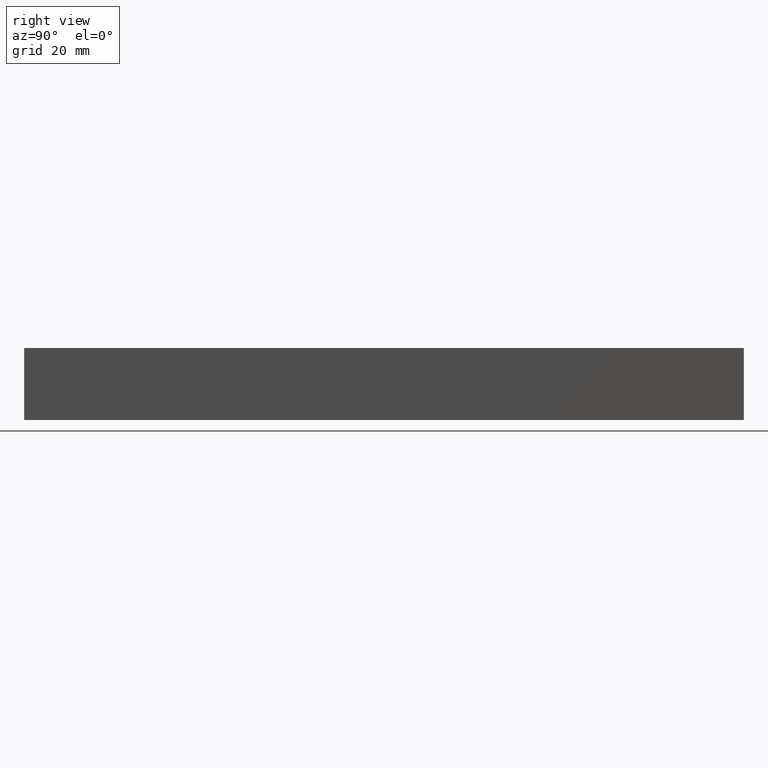
[diagram: clean part render]
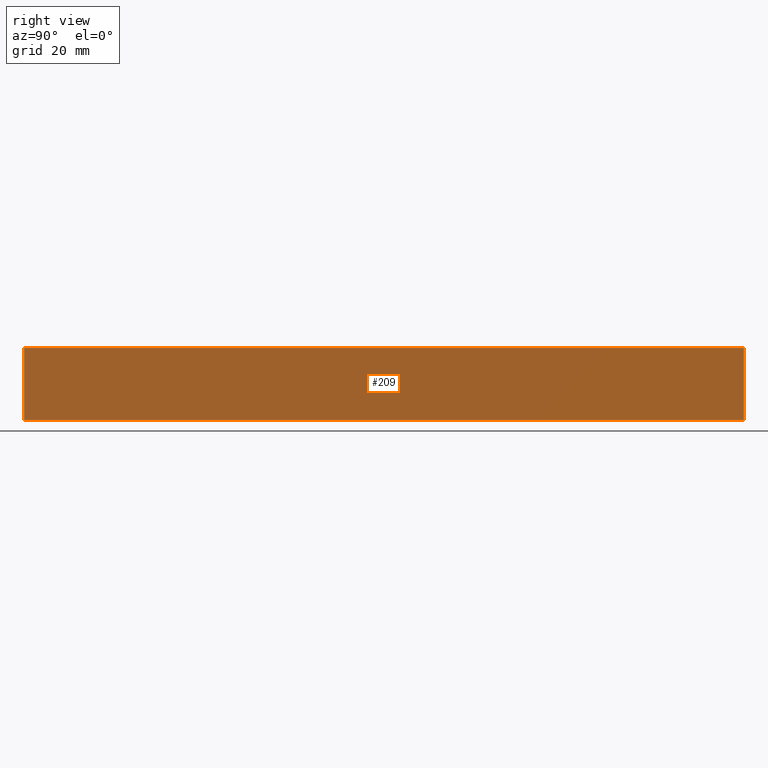
[diagram: same view with one face highlighted and labeled with its STEP entity id]
A machine part, right view. The second image highlights one B-rep face of the part: STEP entity #209.
In plain terms, the highlighted planar face has unit normal (1, 0, 0).
Its self-contained STEP definition (entity closure, byte-faithful):
#6 = EDGE_LOOP ( 'NONE', ( #106, #48, #93, #238 ) ) ;
#8 = LINE ( 'NONE', #63, #120 ) ;
#10 = EDGE_CURVE ( 'NONE', #144, #17, #163, .T. ) ;
#17 = VERTEX_POINT ( 'NONE', #234 ) ;
#21 = VERTEX_POINT ( 'NONE', #97 ) ;
#48 = ORIENTED_EDGE ( 'NONE', *, *, #229, .F. ) ;
#52 = CARTESIAN_POINT ( 'NONE',  ( 30.00000000000000000, 0.0000000000000000000, -10.00000000000000000 ) ) ;
#57 = DIRECTION ( 'NONE',  ( 0.0000000000000000000, 0.0000000000000000000, 1.000000000000000000 ) ) ;
#61 = DIRECTION ( 'NONE',  ( 0.0000000000000000000, 1.000000000000000000, 0.0000000000000000000 ) ) ;
#63 = CARTESIAN_POINT ( 'NONE',  ( 30.00000000000000000, 0.0000000000000000000, 10.00000000000000000 ) ) ;
#83 = DIRECTION ( 'NONE',  ( 1.000000000000000000, 0.0000000000000000000, 0.0000000000000000000 ) ) ;
#93 = ORIENTED_EDGE ( 'NONE', *, *, #10, .T. ) ;
#95 = CARTESIAN_POINT ( 'NONE',  ( 30.00000000000000000, 0.0000000000000000000, -10.00000000000000000 ) ) ;
#97 = CARTESIAN_POINT ( 'NONE',  ( 30.00000000000000000, 200.0000000000000000, 10.00000000000000000 ) ) ;
#102 = CARTESIAN_POINT ( 'NONE',  ( 30.00000000000000000, 0.0000000000000000000, -10.00000000000000000 ) ) ;
#106 = ORIENTED_EDGE ( 'NONE', *, *, #205, .F. ) ;
#120 = VECTOR ( 'NONE', #219, 1000.000000000000000 ) ;
#121 = PLANE ( 'NONE',  #175 ) ;
#144 = VERTEX_POINT ( 'NONE', #232 ) ;
#152 = VECTOR ( 'NONE', #57, 1000.000000000000000 ) ;
#161 = DIRECTION ( 'NONE',  ( 0.0000000000000000000, 0.0000000000000000000, 1.000000000000000000 ) ) ;
#163 = LINE ( 'NONE', #52, #208 ) ;
#175 = AXIS2_PLACEMENT_3D ( 'NONE', #102, #83, #184 ) ;
#178 = FACE_OUTER_BOUND ( 'NONE', #6, .T. ) ;
#180 = CARTESIAN_POINT ( 'NONE',  ( 30.00000000000000000, 0.0000000000000000000, 10.00000000000000000 ) ) ;
#184 = DIRECTION ( 'NONE',  ( 0.0000000000000000000, 0.0000000000000000000, -1.000000000000000000 ) ) ;
#189 = VERTEX_POINT ( 'NONE', #180 ) ;
#200 = EDGE_CURVE ( 'NONE', #17, #21, #222, .T. ) ;
#205 = EDGE_CURVE ( 'NONE', #189, #21, #8, .T. ) ;
#207 = VECTOR ( 'NONE', #161, 1000.000000000000000 ) ;
#208 = VECTOR ( 'NONE', #61, 1000.000000000000000 ) ;
#209 = ADVANCED_FACE ( 'NONE', ( #178 ), #121, .T. ) ;
#219 = DIRECTION ( 'NONE',  ( 0.0000000000000000000, 1.000000000000000000, 0.0000000000000000000 ) ) ;
#221 = LINE ( 'NONE', #95, #207 ) ;
#222 = LINE ( 'NONE', #230, #152 ) ;
#229 = EDGE_CURVE ( 'NONE', #144, #189, #221, .T. ) ;
#230 = CARTESIAN_POINT ( 'NONE',  ( 30.00000000000000000, 200.0000000000000000, -10.00000000000000000 ) ) ;
#232 = CARTESIAN_POINT ( 'NONE',  ( 30.00000000000000000, 0.0000000000000000000, -10.00000000000000000 ) ) ;
#234 = CARTESIAN_POINT ( 'NONE',  ( 30.00000000000000000, 200.0000000000000000, -10.00000000000000000 ) ) ;
#238 = ORIENTED_EDGE ( 'NONE', *, *, #200, .T. ) ;